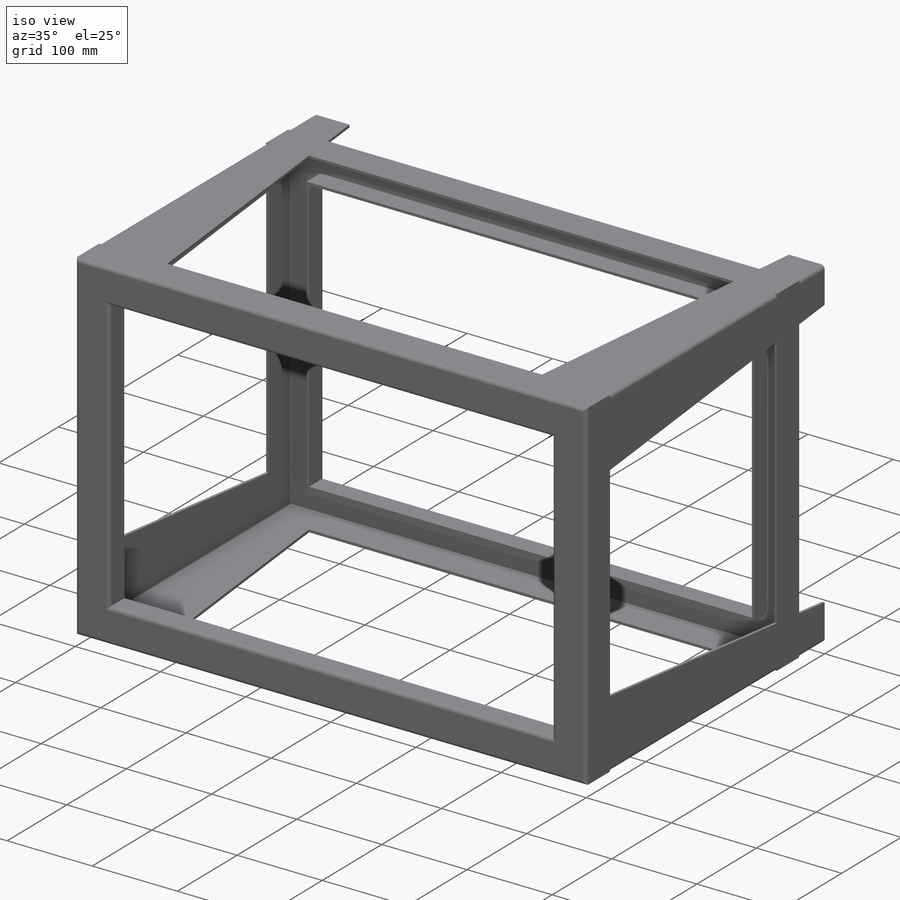
[diagram: iso view]
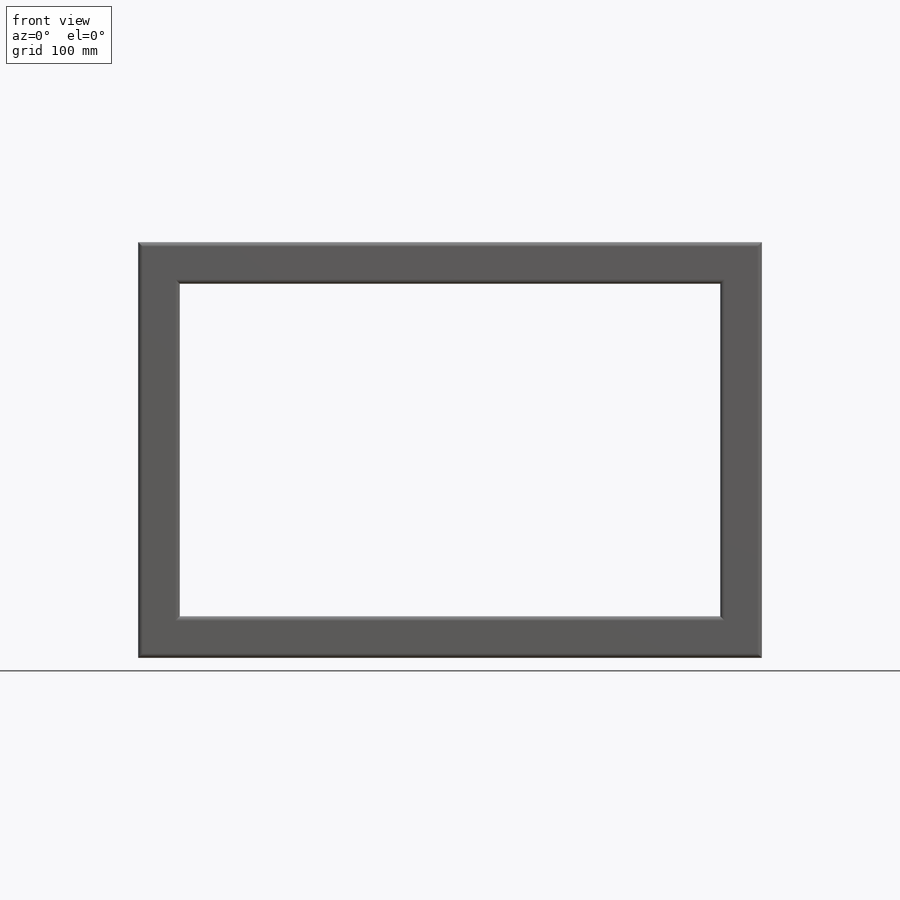
[diagram: front view]
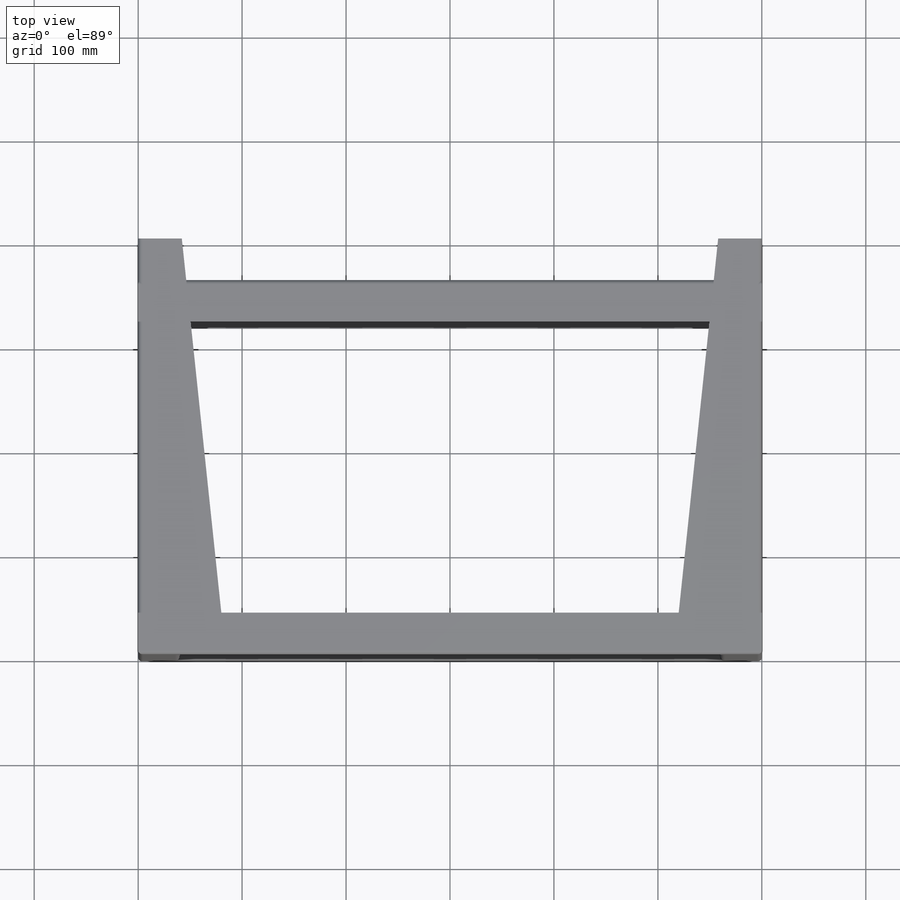
[diagram: top view]
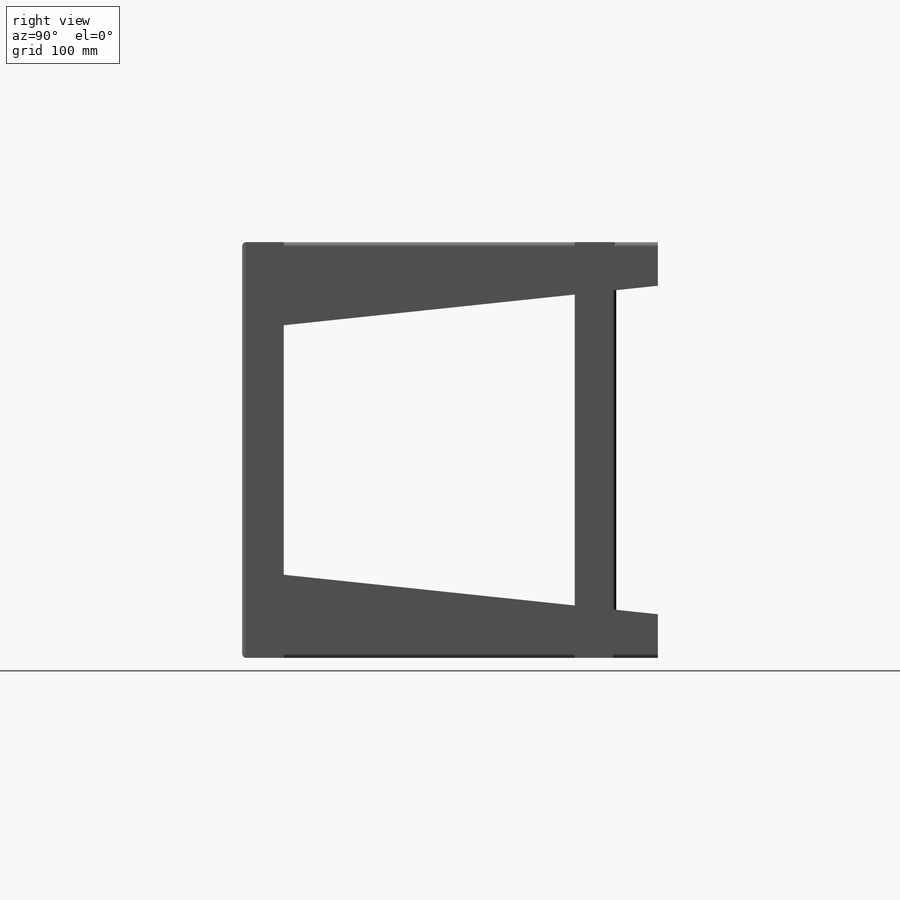
[diagram: right view]
SOLIDWORKS PART (.sldprt)
format: sldprt  version: not decoded by parser v0  size: 1,228,800 bytes
history: native  units: mm
features: sketch x10, plane x7, cut_extrude x2, material x1 + 2 further entries (+10 scaffold rows collapsed)
feature tree (32):
  scaffold x10  (default folders/planes/origin — collapsed)
  material  "1.0037 (S235JR)"
  "Zuschnittslistenelement2"
  "Zuschnittslistenelement3"
  plane  "Ebene vorne"
  plane  "Ebene oben"
  plane  "Ebene rechts"
  sketch  "Skizze1"  dims[c1.D1=400.0mm c1.D2=600.0mm c2.D1=400.0mm c2.D2=600.0mm c2.D3=0.0mm c2.D4=~189.301616mm]
  sketch  "3D-Skizze2"  dims[c1.D1=400.0mm c1.D2=~510.637044mm c2.D2=400.0mm c2.D3=~863.984231mm c3.D3=400.0mm c3.D4=~152.94338mm c4.D4=400.0mm c4.D1=3.9mm c4.D2=0.5 c4.D3=5.8mm c4.D6=500.0mm]
  plane  "Ebene2"
  sketch  "Skizze14"  dims[c1.D3=4.0mm c1.D4=10.0mm c1.D1=4.0mm c1.D2=4.0mm c2.D1=50.0mm c2.D2=50.0mm c2.D5=~44.868005mm c3.D5=90.0deg c3.D4=46.0mm c4.D4=90.0deg c4.D5=~41.987526mm c5.D5=90.0deg c5.D6=42.0mm c6.D6=90.0deg c7.D6=50.0mm c7.D1=40.0mm c8.D6=25.0mm c8.D2=40.0mm c8.D4=2.0mm c8.D7=3.0mm c8.Strukturbauteil3=0.0]
  plane  "Ebene3"
  sketch  "Skizze16"  dims[c1.D3=4.0mm c1.D2=4.0mm c1.D1=50.0mm c2.D2=50.0mm c2.D5=~44.868005mm c3.D5=90.0deg c3.D2=80.0mm c3.D1=80.0mm c3.D4=3.0mm]
  sketch  "Skizze17"  dims[D1=516.0mm]
  cut_extrude  "Schnitt-Linear austragen3"  [1 undecoded]
  sketch  "Skizze18"  dims[D1=316.0mm]
  cut_extrude  "Schnitt-Linear austragen4"  Depth=1mm
  plane  "Unteres-Profil"  Offset=40mm
  sketch  "Skizze20"  dims[D1=400.0mm D2=600.0mm Strukturbauteil5=0.0]
  plane  "Ebene6"
  sketch  "Skizze111"  dims[c1.D3=4.0mm c1.D4=10.0mm c1.D1=4.0mm c1.D2=4.0mm c2.D1=50.0mm c2.D2=50.0mm c2.D5=~44.868005mm c3.D5=90.0deg c3.D4=46.0mm c4.D4=90.0deg c4.D5=~41.987526mm c5.D5=90.0deg c5.D6=42.0mm c6.D6=90.0deg c7.D6=50.0mm c7.D1=40.0mm c8.D6=25.0mm c8.D2=40.0mm c8.D4=2.0mm c8.D7=3.0mm]
  sketch  "Biegung-Linien1"
  sketch  "Rahmen1"
decode coverage: 9 of 12 modeling features carry decoded parameters; 2 rows unclassified (native names shown)
note: ~ marks probable driven/reference dimensions
note: 1 parameter value undecoded
note: suppression state not decoded; provenance and decode notes live in map.json
